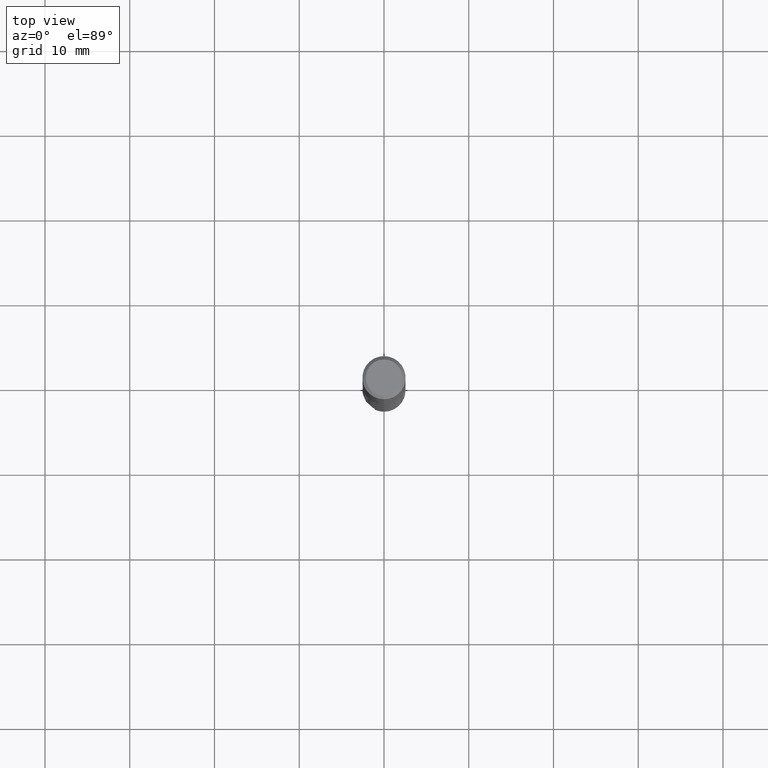
[diagram: clean part render]
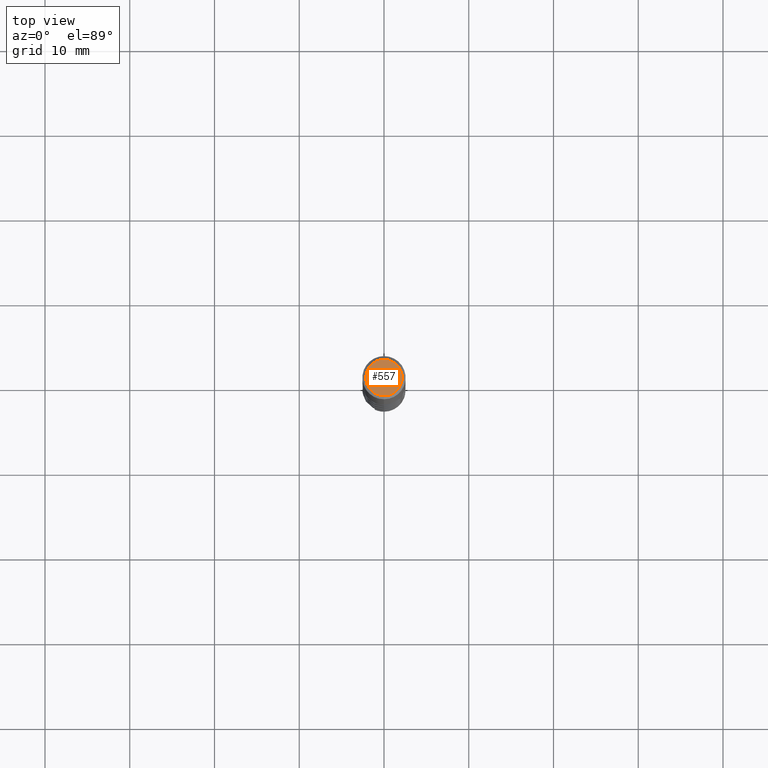
[diagram: same view with one face highlighted and labeled with its STEP entity id]
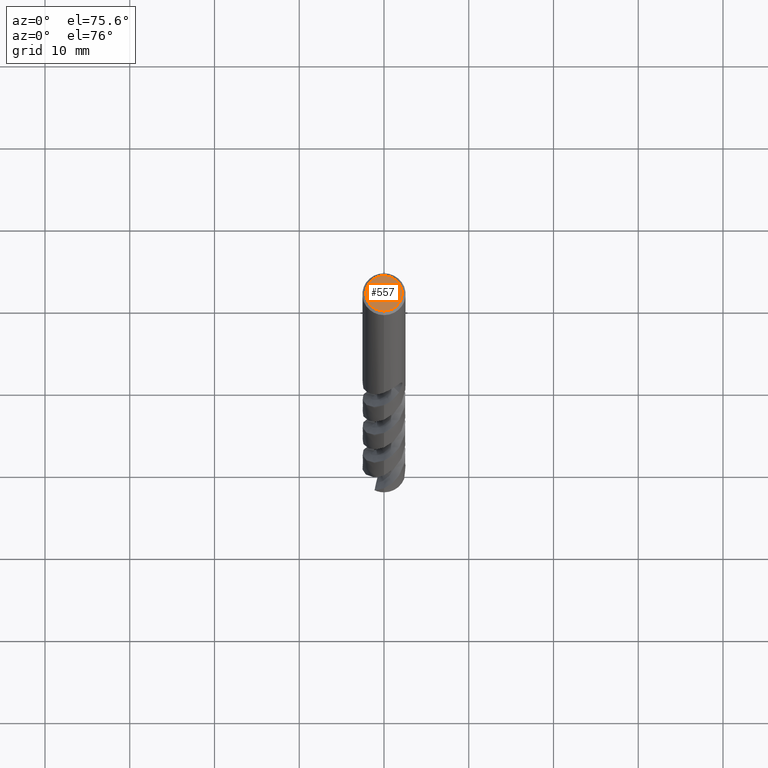
[diagram: same view with one face highlighted and labeled with its STEP entity id]
A machine part, top view. The second image highlights one B-rep face of the part: STEP entity #557.
A second angle (auxiliary view) of the same face is appended — the face is thin or edge-on in the first view.
In plain terms, the highlighted planar face has unit normal (-0, 0, 1).
Its self-contained STEP definition (entity closure, byte-faithful):
#443=VERTEX_POINT('',#959);
#467=EDGE_CURVE('',#517,#443,#984,.T.);
#517=VERTEX_POINT('',#1039);
#557=ADVANCED_FACE('',(#1080),#1081,.T.);
#559=EDGE_CURVE('',#443,#517,#1083,.T.);
#959=CARTESIAN_POINT('',(2.63290366071811E-016,-2.15,0.0));
#984=CIRCLE('',#3092,2.15);
#1039=CARTESIAN_POINT('',(0.0,2.15,0.0));
#1080=FACE_OUTER_BOUND('',#5041,.T.);
#1081=PLANE('',#5042);
#1083=CIRCLE('',#5045,2.15);
#3092=AXIS2_PLACEMENT_3D('',#8126,#8127,#8128);
#5041=EDGE_LOOP('',(#8230,#8231));
#5042=AXIS2_PLACEMENT_3D('',#8232,#8233,#8234);
#5045=AXIS2_PLACEMENT_3D('',#8235,#8236,#8237);
#8126=CARTESIAN_POINT('',(0.0,0.0,0.0));
#8127=DIRECTION('',(0.0,0.0,-1.0));
#8128=DIRECTION('',(0.0,1.0,0.0));
#8230=ORIENTED_EDGE('',*,*,#467,.F.);
#8231=ORIENTED_EDGE('',*,*,#559,.F.);
#8232=CARTESIAN_POINT('',(0.0,1.075,0.0));
#8233=DIRECTION('',(-0.0,0.0,1.0));
#8234=DIRECTION('',(0.0,-1.0,0.0));
#8235=CARTESIAN_POINT('',(0.0,0.0,0.0));
#8236=DIRECTION('',(0.0,0.0,-1.0));
#8237=DIRECTION('',(0.0,1.0,0.0));